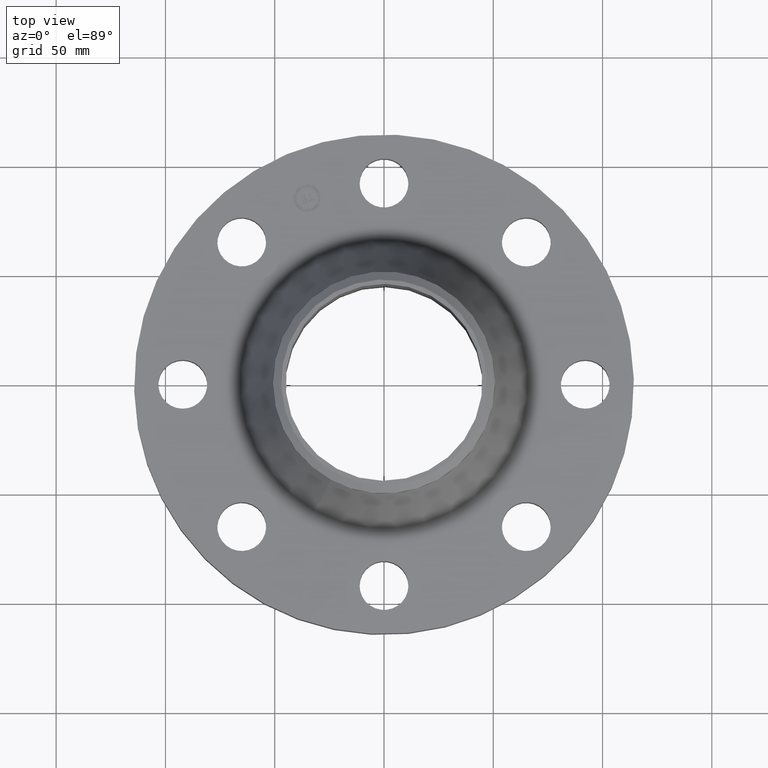
[diagram: clean part render]
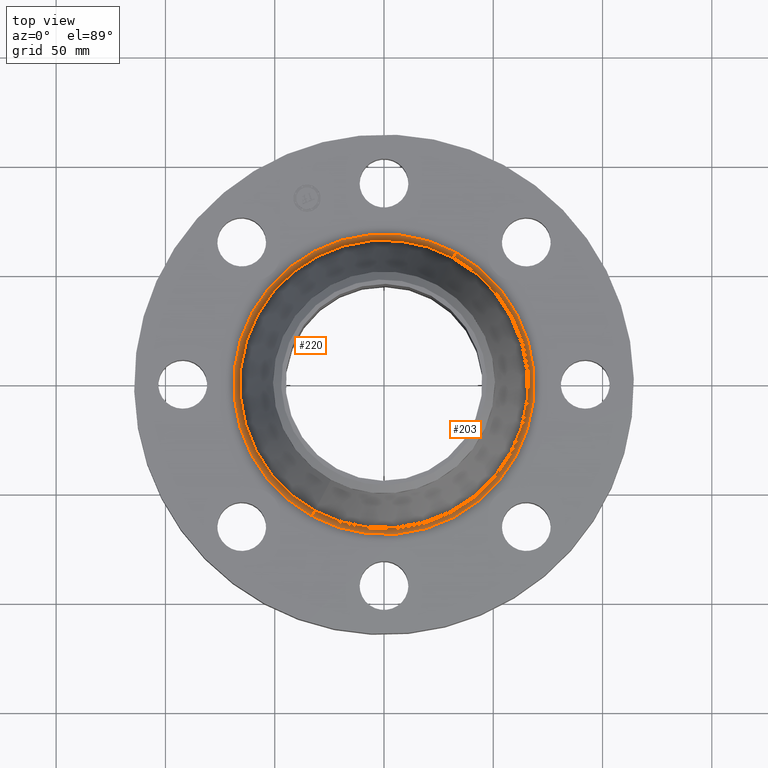
[diagram: same view with one multi-face feature highlighted, each face labeled with its STEP entity id]
A machine part, top view. The highlighted faces form ONE feature: a constant-radius fillet chain: 2 tangent blend faces with common blend radius 3.048 mm. The faces share edges in the B-rep.
Their STEP definitions:
[1] entity #203 (Torus):
#167=AXIS2_PLACEMENT_3D('Torus Axis2P3D',#164,#165,#166) ;
#171=AXIS2_PLACEMENT_3D('Circle Axis2P3D',#169,#170,$) ;
#180=AXIS2_PLACEMENT_3D('Circle Axis2P3D',#178,#179,$) ;
#187=AXIS2_PLACEMENT_3D('Circle Axis2P3D',#185,#186,$) ;
#194=AXIS2_PLACEMENT_3D('Circle Axis2P3D',#192,#193,$) ;
#164=CARTESIAN_POINT('Axis2P3D Location',(0.,0.,1.24)) ;
#169=CARTESIAN_POINT('Axis2P3D Location',(0.,0.,1.12)) ;
#173=CARTESIAN_POINT('Vertex',(1.29831154166,2.37654333597,1.12)) ;
#175=CARTESIAN_POINT('Vertex',(-1.29831154166,-2.37654333597,1.12)) ;
#178=CARTESIAN_POINT('Axis2P3D Location',(1.29831154166,2.37654333597,1.24)) ;
#182=CARTESIAN_POINT('Vertex',(1.24446708118,2.27798171218,1.19773440652)) ;
#185=CARTESIAN_POINT('Axis2P3D Location',(0.,0.,1.19773440652)) ;
#189=CARTESIAN_POINT('Vertex',(-1.24446708118,-2.27798171218,1.19773440652)) ;
#192=CARTESIAN_POINT('Axis2P3D Location',(-1.29831154166,-2.37654333597,1.24)) ;
#165=DIRECTION('Axis2P3D Direction',(0.,0.,-0.0393700787402)) ;
#166=DIRECTION('Axis2P3D XDirection',(-0.0188750212049,-0.0345504945626,0.)) ;
#170=DIRECTION('Axis2P3D Direction',(0.,0.,-0.0393700787402)) ;
#179=DIRECTION('Axis2P3D Direction',(-0.0345504945626,0.0188750212049,0.)) ;
#186=DIRECTION('Axis2P3D Direction',(0.,0.,-0.0393700787402)) ;
#193=DIRECTION('Axis2P3D Direction',(0.0345504945626,-0.0188750212049,0.)) ;
#198=ORIENTED_EDGE('',*,*,#177,.F.) ;
#199=ORIENTED_EDGE('',*,*,#184,.T.) ;
#200=ORIENTED_EDGE('',*,*,#191,.T.) ;
#201=ORIENTED_EDGE('',*,*,#196,.F.) ;
#203=ADVANCED_FACE('PartBody',(#202),#168,.F.) ;
#172=CIRCLE('generated circle',#171,2.70805669936) ;
#181=CIRCLE('generated circle',#180,0.12) ;
#188=CIRCLE('generated circle',#187,2.59574632759) ;
#195=CIRCLE('generated circle',#194,0.12) ;
#168=TOROIDAL_SURFACE('homeo Torus',#167,2.70805669936,0.12) ;
#177=EDGE_CURVE('',#174,#176,#172,.T.) ;
#184=EDGE_CURVE('',#174,#183,#181,.T.) ;
#191=EDGE_CURVE('',#183,#190,#188,.T.) ;
#196=EDGE_CURVE('',#176,#190,#195,.T.) ;
#197=EDGE_LOOP('',(#198,#199,#200,#201)) ;
#202=FACE_OUTER_BOUND('',#197,.T.) ;
#174=VERTEX_POINT('',#173) ;
#176=VERTEX_POINT('',#175) ;
#183=VERTEX_POINT('',#182) ;
#190=VERTEX_POINT('',#189) ;
[2] entity #220 (Torus):
#167=AXIS2_PLACEMENT_3D('Torus Axis2P3D',#164,#165,#166) ;
#180=AXIS2_PLACEMENT_3D('Circle Axis2P3D',#178,#179,$) ;
#194=AXIS2_PLACEMENT_3D('Circle Axis2P3D',#192,#193,$) ;
#206=AXIS2_PLACEMENT_3D('Circle Axis2P3D',#204,#205,$) ;
#211=AXIS2_PLACEMENT_3D('Circle Axis2P3D',#209,#210,$) ;
#164=CARTESIAN_POINT('Axis2P3D Location',(0.,0.,1.24)) ;
#173=CARTESIAN_POINT('Vertex',(1.29831154166,2.37654333597,1.12)) ;
#175=CARTESIAN_POINT('Vertex',(-1.29831154166,-2.37654333597,1.12)) ;
#178=CARTESIAN_POINT('Axis2P3D Location',(1.29831154166,2.37654333597,1.24)) ;
#182=CARTESIAN_POINT('Vertex',(1.24446708118,2.27798171218,1.19773440652)) ;
#189=CARTESIAN_POINT('Vertex',(-1.24446708118,-2.27798171218,1.19773440652)) ;
#192=CARTESIAN_POINT('Axis2P3D Location',(-1.29831154166,-2.37654333597,1.24)) ;
#204=CARTESIAN_POINT('Axis2P3D Location',(0.,0.,1.12)) ;
#209=CARTESIAN_POINT('Axis2P3D Location',(0.,0.,1.19773440652)) ;
#165=DIRECTION('Axis2P3D Direction',(0.,0.,-0.0393700787402)) ;
#166=DIRECTION('Axis2P3D XDirection',(-0.0188750212049,-0.0345504945626,0.)) ;
#179=DIRECTION('Axis2P3D Direction',(-0.0345504945626,0.0188750212049,0.)) ;
#193=DIRECTION('Axis2P3D Direction',(0.0345504945626,-0.0188750212049,0.)) ;
#205=DIRECTION('Axis2P3D Direction',(0.,0.,-0.0393700787402)) ;
#210=DIRECTION('Axis2P3D Direction',(0.,0.,-0.0393700787402)) ;
#215=ORIENTED_EDGE('',*,*,#208,.F.) ;
#216=ORIENTED_EDGE('',*,*,#196,.T.) ;
#217=ORIENTED_EDGE('',*,*,#213,.T.) ;
#218=ORIENTED_EDGE('',*,*,#184,.F.) ;
#220=ADVANCED_FACE('PartBody',(#219),#168,.F.) ;
#181=CIRCLE('generated circle',#180,0.12) ;
#195=CIRCLE('generated circle',#194,0.12) ;
#207=CIRCLE('generated circle',#206,2.70805669936) ;
#212=CIRCLE('generated circle',#211,2.59574632759) ;
#168=TOROIDAL_SURFACE('homeo Torus',#167,2.70805669936,0.12) ;
#184=EDGE_CURVE('',#174,#183,#181,.T.) ;
#196=EDGE_CURVE('',#176,#190,#195,.T.) ;
#208=EDGE_CURVE('',#176,#174,#207,.T.) ;
#213=EDGE_CURVE('',#190,#183,#212,.T.) ;
#214=EDGE_LOOP('',(#215,#216,#217,#218)) ;
#219=FACE_OUTER_BOUND('',#214,.T.) ;
#174=VERTEX_POINT('',#173) ;
#176=VERTEX_POINT('',#175) ;
#183=VERTEX_POINT('',#182) ;
#190=VERTEX_POINT('',#189) ;